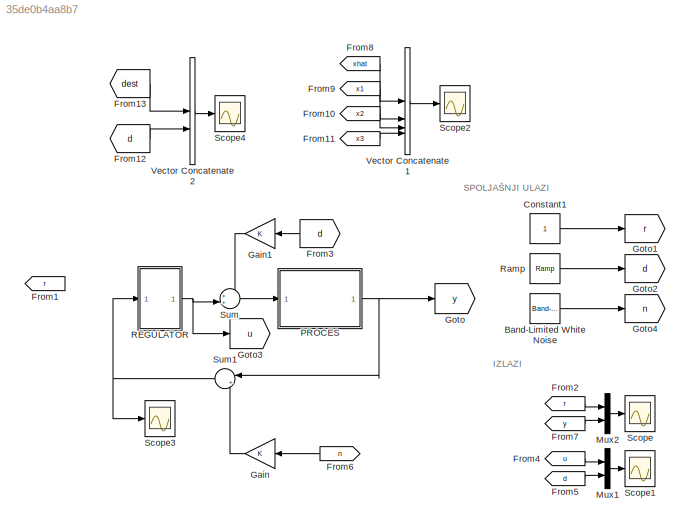
MODEL slx_35de0b4aa8b7
KIND model
CONFIG AbsTol = auto
CONFIG EnableMultiTasking = off
CONFIG FixedStep = auto
CONFIG MaxStep = auto
CONFIG MinStep = auto
CONFIG RelTol = 1e-3
CONFIG SampleTimeConstraint = Unconstrained
CONFIG SolverName = VariableStepAuto
CONFIG StartTime = 0.0
CONFIG StopTime = 20
BLOCK [Reference] Band-Limited White Noise  REF=simulink/Sources/Band-Limited
White Noise
  SourceBlock = simulink/Sources/Band-Limited\nWhite Noise
  SourceType = Band-Limited White Noise.
BLOCK [Constant] Constant1
BLOCK [From] From1
  GotoTag = r
BLOCK [From] From10
  GotoTag = x2
  TagVisibility = global
BLOCK [From] From11
  GotoTag = x3
  TagVisibility = global
BLOCK [From] From12
  GotoTag = d
  NameLocation = top
BLOCK [From] From13
  GotoTag = dest
  NameLocation = top
  TagVisibility = global
BLOCK [From] From2
  GotoTag = r
BLOCK [From] From3
  GotoTag = d
BLOCK [From] From4
  GotoTag = u
BLOCK [From] From5
  GotoTag = d
BLOCK [From] From6
  GotoTag = n
BLOCK [From] From7
  GotoTag = y
BLOCK [From] From8
  GotoTag = xhat
  TagVisibility = global
BLOCK [From] From9
  GotoTag = x1
  TagVisibility = global
BLOCK [Gain] Gain
BLOCK [Gain] Gain1
BLOCK [Goto] Goto
  GotoTag = y
BLOCK [Goto] Goto1
  GotoTag = r
BLOCK [Goto] Goto2
  GotoTag = d
BLOCK [Goto] Goto3
  GotoTag = u
BLOCK [Goto] Goto4
  GotoTag = n
BLOCK [Mux] Mux1
  DisplayOption = bar
  Inputs = 2
BLOCK [Mux] Mux2
  DisplayOption = bar
  Inputs = 2
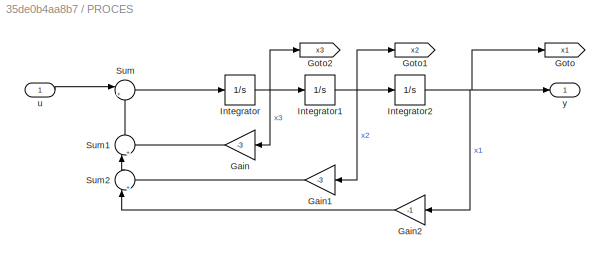
BLOCK [SubSystem] PROCES
BLOCK [Gain] PROCES/Gain
  Gain = -3
  NameLocation = top
BLOCK [Gain] PROCES/Gain1
  Gain = -3
  NameLocation = top
BLOCK [Gain] PROCES/Gain2
  Gain = -1
  NameLocation = top
BLOCK [Goto] PROCES/Goto
  GotoTag = x1
  TagVisibility = global
BLOCK [Goto] PROCES/Goto1
  GotoTag = x2
  TagVisibility = global
BLOCK [Goto] PROCES/Goto2
  GotoTag = x3
  TagVisibility = global
BLOCK [Integrator] PROCES/Integrator
  InitialCondition = ic
BLOCK [Integrator] PROCES/Integrator1
  InitialCondition = ic
BLOCK [Integrator] PROCES/Integrator2
  InitialCondition = ic
BLOCK [Sum] PROCES/Sum
  Inputs = |++
BLOCK [Sum] PROCES/Sum1
  Inputs = |++
  NameLocation = right
BLOCK [Sum] PROCES/Sum2
  Inputs = |++
  NameLocation = right
BLOCK [Inport] PROCES/u
BLOCK [Outport] PROCES/y
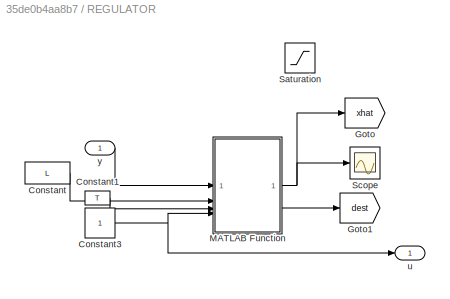
BLOCK [SubSystem] REGULATOR
BLOCK [Constant] REGULATOR/Constant
  Value = L
  VectorParams1D = off
BLOCK [Constant] REGULATOR/Constant1
  Value = T
BLOCK [Constant] REGULATOR/Constant3
BLOCK [Goto] REGULATOR/Goto
  GotoTag = xhat
  TagVisibility = global
BLOCK [Goto] REGULATOR/Goto1
  GotoTag = dest
  TagVisibility = global
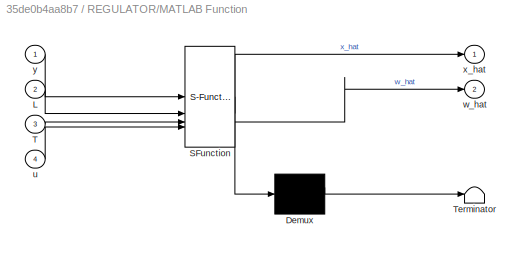
BLOCK [SubSystem] REGULATOR/MATLAB Function
  ErrorFcn = Stateflow.Translate.translate
  PermitHierarchicalResolution = ExplicitOnly
  SFBlockType = MATLAB Function
  TreatAsAtomicUnit = on
BLOCK [Demux] REGULATOR/MATLAB Function/ Demux 
  Outputs = 1
BLOCK [S-Function] REGULATOR/MATLAB Function/ SFunction 
  EnableBusSupport = off
  FunctionName = sf_sfun
  PortCounts = [4 3]
  SFcnIsStateOwnerBlock = off
  SFunctionDeploymentMode = off
  Tag = Stateflow S-Function 2
BLOCK [Terminator] REGULATOR/MATLAB Function/ Terminator 
BLOCK [Inport] REGULATOR/MATLAB Function/L
  Port = 2
BLOCK [Inport] REGULATOR/MATLAB Function/T
  Port = 3
BLOCK [Inport] REGULATOR/MATLAB Function/u
  Port = 4
BLOCK [Outport] REGULATOR/MATLAB Function/w_hat
  Port = 2
BLOCK [Outport] REGULATOR/MATLAB Function/x_hat
BLOCK [Inport] REGULATOR/MATLAB Function/y
BLOCK [Saturate] REGULATOR/Saturation
  Commented = through
  LowerLimit = -umax
  UpperLimit = umax
BLOCK [Scope] REGULATOR/Scope
  Floating = off
  NumInputPorts = 1
  ScopeSpecificationString = Simulink.scopes.TimeScopeBlockCfg('CurrentConfiguration', extmgr.ConfigurationSet(extmgr.Configuration('Core','General UI',true,'DisplayFullSourceName',false,'ShowMainToolbar',true,'FigureColor',[0.129411764705882 0.129411764705882 0.129411764705882]),extmgr.Configuration('Sources','WiredSimulink',true,'DataLogging',false,'DataLoggingVariableName','ScopeData4','DataLoggingLimitDataPoints',false,'D...<+2522ch>
BLOCK [Outport] REGULATOR/u
BLOCK [Inport] REGULATOR/y
BLOCK [Reference] Ramp  REF=simulink/Sources/Ramp
  SourceBlock = simulink/Sources/Ramp
  SourceType = Ramp
BLOCK [Scope] Scope
  Floating = off
  NumInputPorts = 1
  ScopeSpecificationString = Simulink.scopes.TimeScopeBlockCfg('CurrentConfiguration', extmgr.ConfigurationSet(extmgr.Configuration('Core','General UI',true,'DisplayFullSourceName',false,'ShowMainToolbar',true,'FigureColor',[0.129411764705882 0.129411764705882 0.129411764705882]),extmgr.Configuration('Sources','WiredSimulink',true,'DataLogging',false,'DataLoggingVariableName','ScopeData','DataLoggingLimitDataPoints',false,'Da...<+2776ch>
BLOCK [Scope] Scope1
  Floating = off
  NumInputPorts = 1
  ScopeSpecificationString = Simulink.scopes.TimeScopeBlockCfg('CurrentConfiguration', extmgr.ConfigurationSet(extmgr.Configuration('Core','General UI',true,'DisplayFullSourceName',false,'ShowMainToolbar',true,'FigureColor',[0.129411764705882 0.129411764705882 0.129411764705882]),extmgr.Configuration('Sources','WiredSimulink',true,'DataLogging',false,'DataLoggingVariableName','ScopeData1','DataLoggingLimitDataPoints',false,'D...<+2396ch>
BLOCK [Scope] Scope2
  Floating = off
  NumInputPorts = 1
  ScopeSpecificationString = Simulink.scopes.TimeScopeBlockCfg('CurrentConfiguration', extmgr.ConfigurationSet(extmgr.Configuration('Core','General UI',true,'DisplayFullSourceName',false,'ShowMainToolbar',true,'FigureColor',[0.129411764705882 0.129411764705882 0.129411764705882]),extmgr.Configuration('Sources','WiredSimulink',true,'DataLogging',false,'DataLoggingVariableName','ScopeData2','DataLoggingLimitDataPoints',false,'D...<+3362ch>
BLOCK [Scope] Scope3
  Floating = off
  NumInputPorts = 1
  ScopeSpecificationString = Simulink.scopes.TimeScopeBlockCfg('CurrentConfiguration', extmgr.ConfigurationSet(extmgr.Configuration('Core','General UI',true,'DisplayFullSourceName',false,'ShowMainToolbar',true,'FigureColor',[0.129411764705882 0.129411764705882 0.129411764705882]),extmgr.Configuration('Sources','WiredSimulink',true,'DataLogging',false,'DataLoggingVariableName','ScopeData3','DataLoggingLimitDataPoints',false,'D...<+2938ch>
BLOCK [Scope] Scope4
  Floating = off
  NumInputPorts = 1
  ScopeSpecificationString = Simulink.scopes.TimeScopeBlockCfg('CurrentConfiguration', extmgr.ConfigurationSet(extmgr.Configuration('Core','General UI',true,'DisplayFullSourceName',false,'ShowMainToolbar',true,'FigureColor',[0.129411764705882 0.129411764705882 0.129411764705882]),extmgr.Configuration('Sources','WiredSimulink',true,'DataLogging',false,'DataLoggingVariableName','ScopeData5','DataLoggingLimitDataPoints',false,'D...<+2794ch>
BLOCK [Sum] Sum
  Inputs = ++|
BLOCK [Sum] Sum1
  Inputs = |++
BLOCK [Concatenate] Vector Concatenate1
  NumInputs = 4
BLOCK [Concatenate] Vector Concatenate2
ANNOTATION (root): IZLAZI
ANNOTATION (root): SPOLJAŠNJI ULAZI
LINE Band-Limited White Noise:1 -> Goto4:1
LINE Constant1:1 -> Goto1:1
LINE From10:1 -> Vector Concatenate1:3
LINE From11:1 -> Vector Concatenate1:4
LINE From12:1 -> Vector Concatenate2:2
LINE From13:1 -> Vector Concatenate2:1
LINE From2:1 -> Mux2:1
LINE From3:1 -> Gain1:1
LINE From4:1 -> Mux1:1
LINE From5:1 -> Mux1:2
LINE From6:1 -> Gain:1
LINE From7:1 -> Mux2:2
LINE From8:1 -> Vector Concatenate1:1
LINE From9:1 -> Vector Concatenate1:2
LINE Gain1:1 -> Sum:1
LINE Gain:1 -> Sum1:2
LINE Mux1:1 -> Scope1:1
LINE Mux2:1 -> Scope:1
LINE PROCES/Gain1:1 -> PROCES/Sum2:2
LINE PROCES/Gain2:1 -> PROCES/Sum2:1
LINE PROCES/Gain:1 -> PROCES/Sum1:2
NET PROCES/Integrator1:1 -> PROCES/Gain1:1, PROCES/Goto1:1, PROCES/Integrator2:1
NET PROCES/Integrator2:1 -> PROCES/Gain2:1, PROCES/Goto:1, PROCES/y:1
NET PROCES/Integrator:1 -> PROCES/Gain:1, PROCES/Goto2:1, PROCES/Integrator1:1
LINE PROCES/Sum1:1 -> PROCES/Sum:2
LINE PROCES/Sum2:1 -> PROCES/Sum1:1
LINE PROCES/Sum:1 -> PROCES/Integrator:1
LINE PROCES/u:1 -> PROCES/Sum:1
NET PROCES:1 -> Goto:1, Sum1:1
LINE REGULATOR/Constant1:1 -> REGULATOR/MATLAB Function:3
NET REGULATOR/Constant3:1 -> REGULATOR/MATLAB Function:4, REGULATOR/u:1
LINE REGULATOR/Constant:1 -> REGULATOR/MATLAB Function:2
NET REGULATOR/MATLAB Function:1 -> REGULATOR/Goto:1, REGULATOR/Scope:1
LINE REGULATOR/MATLAB Function:2 -> REGULATOR/Goto1:1
LINE REGULATOR/y:1 -> REGULATOR/MATLAB Function:1
NET REGULATOR:1 -> Goto3:1, Sum:2
LINE Ramp:1 -> Goto2:1
NET Sum1:1 -> REGULATOR:1, Scope3:1
LINE Sum:1 -> PROCES:1
LINE Vector Concatenate1:1 -> Scope2:1
LINE Vector Concatenate2:1 -> Scope4:1
note: NET lines group one-source signal fan-out (src -> all destinations, sorted); 1:1 wires keep LINE
CHART REGULATOR/MATLAB Function states=1 transitions=1
  STATE_LABEL 'eML_blk_kernel()'
  STATE_LABEL 'SCRIPT:\nfunction [x_hat, w_hat] = fcn(y, L, T, u)\npersistent x1hat\npersistent x2hat\npersistent x3hat\npersistent w1hat\npersistent w2hat\n\nif(isempty(x1hat))\n    x1hat = 0;\nend\nif(isempty(x2hat))\n    x2hat = 0;\nend\nif(isempty(x3hat))\n    x3hat = 0;\nend\nif(isempty(w1hat))\n    w1hat = 0;\nend\nif(isempty(w2hat))\n    w2hat = 0;\nend\ne = y - x1hat;\n\nx1hat_n = x1hat + T * (x2hat + L(1, 1) * e);\nx2hat_n = x2h...<+327ch>'
CHART  states=0 transitions=0
